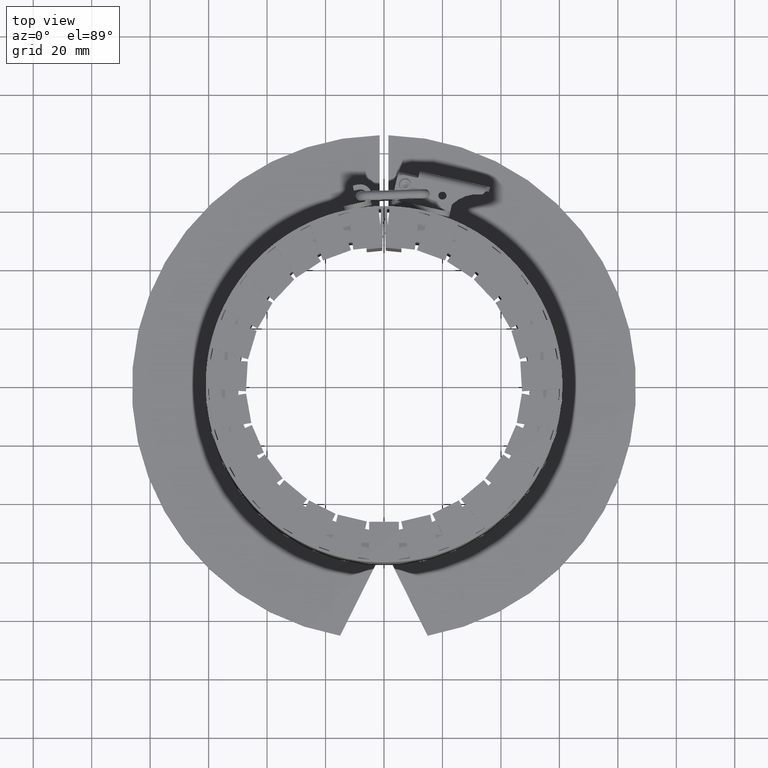
[diagram: clean part render]
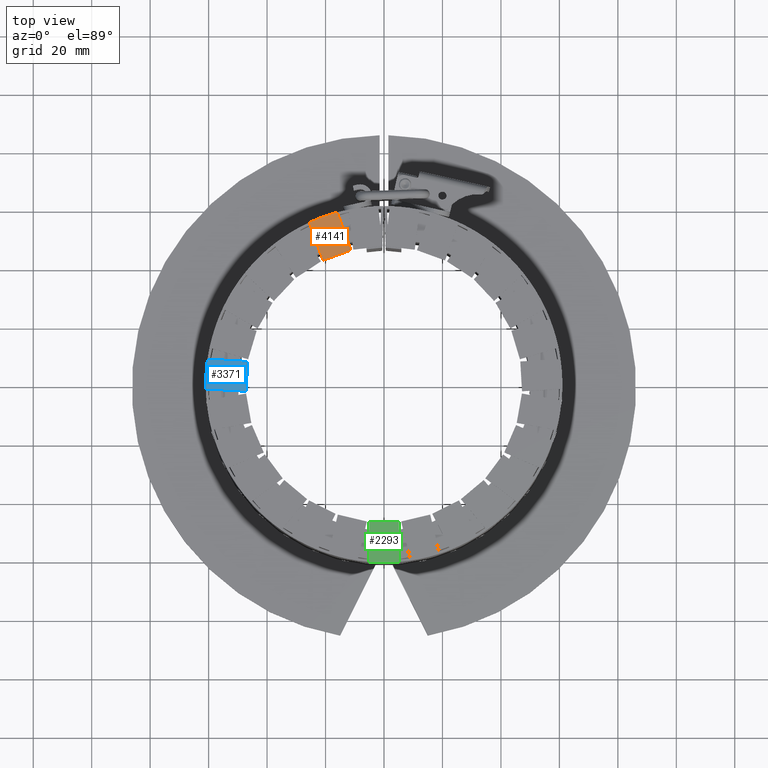
[diagram: same view with three faces highlighted in distinct colors, each labeled with its STEP entity id]
A machine part, top view with three faces highlighted in distinct colors.
Their STEP definitions:

[orange] entity #4141 — the highlighted planar face has unit normal (0, 0, 1).
#3993=CARTESIAN_POINT('',(-20.867379102314558,42.421250445976796,30.850000000000005));
#3994=VERTEX_POINT('',#3993);
#3995=CARTESIAN_POINT('',(-25.582615663899084,55.376256426317113,30.850000000000005));
#3996=VERTEX_POINT('',#3995);
#3997=CARTESIAN_POINT('',(-20.867379102314558,42.421250445976789,30.850000000000001));
#3998=DIRECTION('',(-0.342020143325669,0.939692620785908,0.0));
#3999=VECTOR('',#3998,13.786429406570688);
#4000=LINE('',#3997,#3999);
#4001=EDGE_CURVE('',#3994,#3996,#4000,.T.);
#4041=CARTESIAN_POINT('',(-15.997750931882806,58.864861888238941,30.850000000000005));
#4042=VERTEX_POINT('',#4041);
#4043=CARTESIAN_POINT('',(-11.282514370298287,45.909855907898624,30.850000000000005));
#4044=VERTEX_POINT('',#4043);
#4045=CARTESIAN_POINT('',(-15.997750931882807,58.864861888238956,30.850000000000001));
#4046=DIRECTION('',(0.342020143325669,-0.939692620785908,0.0));
#4047=VECTOR('',#4046,13.786429406570694);
#4048=LINE('',#4045,#4047);
#4049=EDGE_CURVE('',#4042,#4044,#4048,.T.);
#4089=CARTESIAN_POINT('',(-11.282514370298287,45.909855907898617,30.850000000000001));
#4090=DIRECTION('',(-0.939692620785909,-0.342020143325669,0.0));
#4091=VECTOR('',#4090,10.200000000000005);
#4092=LINE('',#4089,#4091);
#4093=EDGE_CURVE('',#4044,#3994,#4092,.T.);
#4124=CARTESIAN_POINT('',(-18.442476799312821,50.670288564927766,30.850000000000005));
#4125=DIRECTION('',(0.0,0.0,1.0));
#4126=DIRECTION('',(0.973044870579824,0.23061587074244,0.0));
#4127=AXIS2_PLACEMENT_3D('',#4124,#4125,#4126);
#4128=PLANE('',#4127);
#4129=ORIENTED_EDGE('',*,*,#4001,.F.);
#4130=ORIENTED_EDGE('',*,*,#4093,.F.);
#4131=ORIENTED_EDGE('',*,*,#4049,.F.);
#4132=CARTESIAN_POINT('',(0.0,0.0,30.850000000000001));
#4133=DIRECTION('',(0.0,0.0,-1.0));
#4134=DIRECTION('',(-0.232210716383507,0.97266550426992,0.0));
#4135=AXIS2_PLACEMENT_3D('',#4132,#4133,#4134);
#4136=CIRCLE('',#4135,61.000000000000014);
#4137=EDGE_CURVE('',#3996,#4042,#4136,.T.);
#4138=ORIENTED_EDGE('',*,*,#4137,.F.);
#4139=EDGE_LOOP('',(#4129,#4130,#4131,#4138));
#4140=FACE_OUTER_BOUND('',#4139,.T.);
#4141=ADVANCED_FACE('',(#4140),#4128,.T.);

[blue] entity #3371 — the highlighted planar face has unit normal (0, 0, 1).
#3223=CARTESIAN_POINT('',(-47.217022066193053,-2.358564648391091,30.850000000000005));
#3224=VERTEX_POINT('',#3223);
#3225=CARTESIAN_POINT('',(-60.98012701620349,-1.556955069259691,30.850000000000005));
#3226=VERTEX_POINT('',#3225);
#3227=CARTESIAN_POINT('',(-47.217022066193053,-2.358564648391093,30.850000000000001));
#3228=DIRECTION('',(-0.998308158271268,0.058144828910476,0.0));
#3229=VECTOR('',#3228,13.786429406570688);
#3230=LINE('',#3227,#3229);
#3231=EDGE_CURVE('',#3224,#3226,#3230,.T.);
#3271=CARTESIAN_POINT('',(-60.387049761316646,8.625788145107261,30.850000000000005));
#3272=VERTEX_POINT('',#3271);
#3273=CARTESIAN_POINT('',(-46.623944811306195,7.82417856597585,30.850000000000005));
#3274=VERTEX_POINT('',#3273);
#3275=CARTESIAN_POINT('',(-60.387049761316639,8.62578814510726,30.850000000000001));
#3276=DIRECTION('',(0.998308158271268,-0.058144828910476,0.0));
#3277=VECTOR('',#3276,13.786429406570695);
#3278=LINE('',#3275,#3277);
#3279=EDGE_CURVE('',#3272,#3274,#3278,.T.);
#3319=CARTESIAN_POINT('',(-46.623944811306195,7.824178565975854,30.850000000000001));
#3320=DIRECTION('',(-0.058144828910476,-0.998308158271268,0.0));
#3321=VECTOR('',#3320,10.200000000000008);
#3322=LINE('',#3319,#3321);
#3323=EDGE_CURVE('',#3274,#3224,#3322,.T.);
#3354=CARTESIAN_POINT('',(-53.830966996442449,3.135296792038365,30.850000000000005));
#3355=DIRECTION('',(0.0,0.0,1.0));
#3356=DIRECTION('',(0.17364817766693,0.984807753012208,0.0));
#3357=AXIS2_PLACEMENT_3D('',#3354,#3355,#3356);
#3358=PLANE('',#3357);
#3359=ORIENTED_EDGE('',*,*,#3231,.F.);
#3360=ORIENTED_EDGE('',*,*,#3323,.F.);
#3361=ORIENTED_EDGE('',*,*,#3279,.F.);
#3362=CARTESIAN_POINT('',(0.0,0.0,30.850000000000001));
#3363=DIRECTION('',(0.0,0.0,-1.0));
#3364=DIRECTION('',(-0.985091098844429,0.172033505392046,0.0));
#3365=AXIS2_PLACEMENT_3D('',#3362,#3363,#3364);
#3366=CIRCLE('',#3365,61.000000000000014);
#3367=EDGE_CURVE('',#3226,#3272,#3366,.T.);
#3368=ORIENTED_EDGE('',*,*,#3367,.F.);
#3369=EDGE_LOOP('',(#3359,#3360,#3361,#3368));
#3370=FACE_OUTER_BOUND('',#3369,.T.);
#3371=ADVANCED_FACE('',(#3370),#3358,.T.);

[green] entity #2293 — the highlighted planar face has unit normal (0, 0, 1).
#2145=CARTESIAN_POINT('',(5.099999999999985,-47.000000000000014,30.850000000000005));
#2146=VERTEX_POINT('',#2145);
#2147=CARTESIAN_POINT('',(5.099999999999989,-60.786429406570704,30.850000000000005));
#2148=VERTEX_POINT('',#2147);
#2149=CARTESIAN_POINT('',(5.099999999999985,-47.000000000000014,30.850000000000001));
#2150=DIRECTION('',(0.0,-1.0,0.0));
#2151=VECTOR('',#2150,13.78642940657069);
#2152=LINE('',#2149,#2151);
#2153=EDGE_CURVE('',#2146,#2148,#2152,.T.);
#2193=CARTESIAN_POINT('',(-5.100000000000023,-60.786429406570704,30.850000000000005));
#2194=VERTEX_POINT('',#2193);
#2195=CARTESIAN_POINT('',(-5.100000000000016,-47.000000000000021,30.850000000000005));
#2196=VERTEX_POINT('',#2195);
#2197=CARTESIAN_POINT('',(-5.10000000000002,-60.786429406570718,30.850000000000001));
#2198=DIRECTION('',(0.0,1.0,0.0));
#2199=VECTOR('',#2198,13.786429406570697);
#2200=LINE('',#2197,#2199);
#2201=EDGE_CURVE('',#2194,#2196,#2200,.T.);
#2241=CARTESIAN_POINT('',(-5.100000000000022,-47.000000000000014,30.850000000000001));
#2242=DIRECTION('',(1.0,0.0,0.0));
#2243=VECTOR('',#2242,10.200000000000006);
#2244=LINE('',#2241,#2243);
#2245=EDGE_CURVE('',#2196,#2146,#2244,.T.);
#2276=CARTESIAN_POINT('',(-1.776357E-014,-53.922194815736532,30.850000000000005));
#2277=DIRECTION('',(0.0,0.0,1.0));
#2278=DIRECTION('',(-0.993238357741943,0.11609291412523,0.0));
#2279=AXIS2_PLACEMENT_3D('',#2276,#2277,#2278);
#2280=PLANE('',#2279);
#2281=ORIENTED_EDGE('',*,*,#2153,.F.);
#2282=ORIENTED_EDGE('',*,*,#2245,.F.);
#2283=ORIENTED_EDGE('',*,*,#2201,.F.);
#2284=CARTESIAN_POINT('',(0.0,0.0,30.850000000000001));
#2285=DIRECTION('',(0.0,0.0,-1.0));
#2286=DIRECTION('',(-0.114464498525341,-0.993427339354692,0.0));
#2287=AXIS2_PLACEMENT_3D('',#2284,#2285,#2286);
#2288=CIRCLE('',#2287,61.000000000000021);
#2289=EDGE_CURVE('',#2148,#2194,#2288,.T.);
#2290=ORIENTED_EDGE('',*,*,#2289,.F.);
#2291=EDGE_LOOP('',(#2281,#2282,#2283,#2290));
#2292=FACE_OUTER_BOUND('',#2291,.T.);
#2293=ADVANCED_FACE('',(#2292),#2280,.T.);